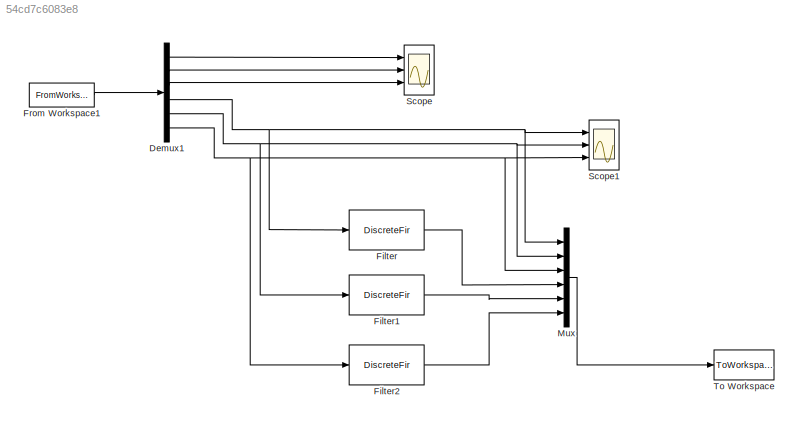
MODEL slx_54cd7c6083e8
KIND model
CONFIG AbsTol = auto
CONFIG EnableMultiTasking = off
CONFIG FixedStep = auto
CONFIG MaxStep = auto
CONFIG MinStep = auto
CONFIG RelTol = 1e-3
CONFIG SampleTimeConstraint = Unconstrained
CONFIG Solver = VariableStepAuto
CONFIG SolverName = VariableStepAuto
CONFIG StartTime = 0.0
CONFIG StopTime = 120
BLOCK [Demux] Demux1
  DisplayOption = bar
  Outputs = 6
  Ports = [1, 6]
BLOCK [DiscreteFir] Filter
  Coefficients = [0 0.0054786758595111026 0.042763636162144819 0.12151889269739169 0.20757905037865335 0.245319489804598 0.20757905037865335 0.12151889269739169 0.042763636162144819 0.0054786758595111026 0]  <repeated x3 — deduplicated; at blocks: Filter, Filter1, Filter2>
  InputPortMap = u0
  InputProcessing = Columns as channels (frame based)
  OutputPortMap = o0
  Ports = [1, 1]
  Tag = BlockMethodSubSystem
BLOCK [DiscreteFir] Filter1
  InputPortMap = u0
  InputProcessing = Columns as channels (frame based)
  OutputPortMap = o0
  Ports = [1, 1]
  Tag = BlockMethodSubSystem
BLOCK [DiscreteFir] Filter2
  InputPortMap = u0
  InputProcessing = Columns as channels (frame based)
  OutputPortMap = o0
  Ports = [1, 1]
  Tag = BlockMethodSubSystem
BLOCK [FromWorkspace] From Workspace1
  OutputAfterFinalValue = Setting to zero
  SampleTime = 0.003
  VariableName = IMU
  ZeroCross = on
BLOCK [Mux] Mux
  DisplayOption = bar
  Inputs = 6
  Ports = [6, 1]
BLOCK [Scope] Scope
  NumInputPorts = 3
  Ports = [3]
  ScopeSpecificationString = Simulink.scopes.TimeScopeBlockCfg('CurrentConfiguration', extmgr.ConfigurationSet(extmgr.Configuration('Core','General UI',true),extmgr.Configuration('Core','Source UI',true),extmgr.Configuration('Sources','WiredSimulink',true),extmgr.Configuration('Visuals','Time Domain',true,'SerializedDisplays',{struct('MinYLimReal','-2.60484','MaxYLimReal','1.8574','YLabelReal','','MinYLimMag','0.00000','MaxYL...<+1348ch>
BLOCK [Scope] Scope1
  NumInputPorts = 3
  Ports = [3]
  ScopeSpecificationString = Simulink.scopes.TimeScopeBlockCfg('CurrentConfiguration', extmgr.ConfigurationSet(extmgr.Configuration('Core','General UI',true),extmgr.Configuration('Core','Source UI',true),extmgr.Configuration('Sources','WiredSimulink',true,'DataLoggingVariableName','ScopeData1'),extmgr.Configuration('Visuals','Time Domain',true,'SerializedDisplays',{struct('MinYLimReal','-68.33965','MaxYLimReal','48.01895','YL...<+1422ch>
BLOCK [ToWorkspace] To Workspace
  FixptAsFi = on
  MaxDataPoints = inf
  Ports = [1]
  SampleTime = -1
  Save2DSignal = 3-D array (concatenate along third dimension)
  VariableName = simout
LINE Demux1:1 -> Scope:1
LINE Demux1:2 -> Scope:2
LINE Demux1:3 -> Scope:3
NET Demux1:4 -> Filter:1, Mux:1, Scope1:1
NET Demux1:5 -> Filter1:1, Mux:2, Scope1:2
NET Demux1:6 -> Filter2:1, Mux:3, Scope1:3
LINE Filter1:1 -> Mux:5
LINE Filter2:1 -> Mux:6
LINE Filter:1 -> Mux:4
LINE From Workspace1:1 -> Demux1:1
LINE Mux:1 -> To Workspace:1
note: NET lines group one-source signal fan-out (src -> all destinations, sorted); 1:1 wires keep LINE
